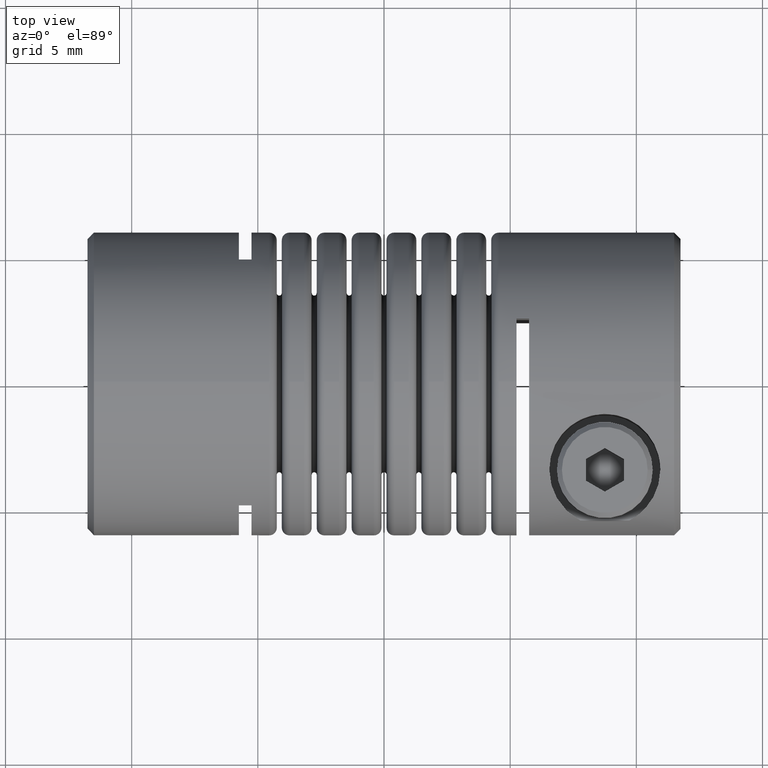
[diagram: clean part render]
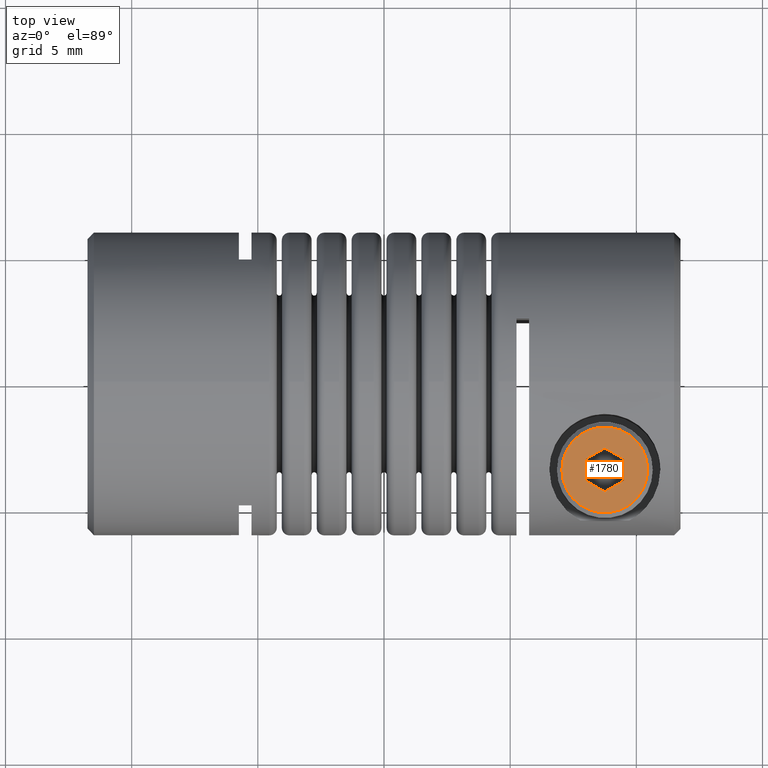
[diagram: same view with one face highlighted and labeled with its STEP entity id]
A machine part, top view. The second image highlights one B-rep face of the part: STEP entity #1780.
In plain terms, the highlighted planar face has unit normal (0, 0, 1).
Its self-contained STEP definition (entity closure, byte-faithful):
#931 = ORIENTED_EDGE ( 'NONE', *, *, #1955, .F. ) ;
#932 = ORIENTED_EDGE ( 'NONE', *, *, #1958, .F. ) ;
#934 = ORIENTED_EDGE ( 'NONE', *, *, #1949, .F. ) ;
#935 = ORIENTED_EDGE ( 'NONE', *, *, #1952, .F. ) ;
#961 = ORIENTED_EDGE ( 'NONE', *, *, #1957, .F. ) ;
#962 = ORIENTED_EDGE ( 'NONE', *, *, #1956, .F. ) ;
#965 = ORIENTED_EDGE ( 'NONE', *, *, #1960, .T. ) ;
#966 = ORIENTED_EDGE ( 'NONE', *, *, #1938, .T. ) ;
#1082 = EDGE_LOOP ( 'NONE', ( #961, #962, #931, #932, #934, #935 ) ) ;
#1087 = EDGE_LOOP ( 'NONE', ( #965, #966 ) ) ;
#1115 = VERTEX_POINT ( 'NONE', #1116 ) ;
#1116 = CARTESIAN_POINT ( 'NONE',  ( 7.049999999999997200, -3.481517620346378500, 4.500000000000001800 ) ) ;
#1117 = VERTEX_POINT ( 'NONE', #1376 ) ;
#1131 = VERTEX_POINT ( 'NONE', #1385 ) ;
#1132 = VERTEX_POINT ( 'NONE', #1386 ) ;
#1133 = VERTEX_POINT ( 'NONE', #1387 ) ;
#1134 = VERTEX_POINT ( 'NONE', #1388 ) ;
#1135 = VERTEX_POINT ( 'NONE', #1389 ) ;
#1136 = VERTEX_POINT ( 'NONE', #1390 ) ;
#1376 = CARTESIAN_POINT ( 'NONE',  ( 10.45000000000000500, -3.481517620346378500, 4.500000000000001800 ) ) ;
#1385 = CARTESIAN_POINT ( 'NONE',  ( 8.000000000000000000, -3.914530322238599900, 4.500000000000001800 ) ) ;
#1386 = CARTESIAN_POINT ( 'NONE',  ( 8.750000000000003600, -4.347543024130818200, 4.500000000000001800 ) ) ;
#1387 = CARTESIAN_POINT ( 'NONE',  ( 8.000000000000000000, -3.048504918454159700, 4.500000000000001800 ) ) ;
#1388 = CARTESIAN_POINT ( 'NONE',  ( 8.750000000000000000, -2.615492216561940500, 4.500000000000001800 ) ) ;
#1389 = CARTESIAN_POINT ( 'NONE',  ( 9.500000000000003600, -3.048504918454161500, 4.500000000000001800 ) ) ;
#1390 = CARTESIAN_POINT ( 'NONE',  ( 9.500000000000003600, -3.914530322238599900, 4.500000000000001800 ) ) ;
#1780 = ADVANCED_FACE ( 'NONE', ( #3428, #3431 ), #3653, .T. ) ;
#1938 = EDGE_CURVE ( 'NONE', #1117, #1115, #4304, .T. ) ;
#1949 = EDGE_CURVE ( 'NONE', #1136, #1135, #4320, .T. ) ;
#1952 = EDGE_CURVE ( 'NONE', #1132, #1136, #4315, .T. ) ;
#1955 = EDGE_CURVE ( 'NONE', #1134, #1133, #4324, .T. ) ;
#1956 = EDGE_CURVE ( 'NONE', #1133, #1131, #4329, .T. ) ;
#1957 = EDGE_CURVE ( 'NONE', #1131, #1132, #4331, .T. ) ;
#1958 = EDGE_CURVE ( 'NONE', #1135, #1134, #4333, .T. ) ;
#1960 = EDGE_CURVE ( 'NONE', #1115, #1117, #4337, .T. ) ;
#2612 = AXIS2_PLACEMENT_3D ( 'NONE', #3652, #3655, #3656 ) ;
#2735 = AXIS2_PLACEMENT_3D ( 'NONE', #4401, #4402, #4403 ) ;
#2743 = AXIS2_PLACEMENT_3D ( 'NONE', #4440, #4455, #4456 ) ;
#3428 = FACE_BOUND ( 'NONE', #1082, .T. ) ;
#3431 = FACE_OUTER_BOUND ( 'NONE', #1087, .T. ) ;
#3652 = CARTESIAN_POINT ( 'NONE',  ( 8.750000000000000000, -3.481517620346378500, 4.500000000000001800 ) ) ;
#3653 = PLANE ( 'NONE',  #2612 ) ;
#3655 = DIRECTION ( 'NONE',  ( 0.0000000000000000000, 0.0000000000000000000, 1.000000000000000000 ) ) ;
#3656 = DIRECTION ( 'NONE',  ( 1.000000000000000000, 0.0000000000000000000, -0.0000000000000000000 ) ) ;
#4304 = CIRCLE ( 'NONE', #2735, 1.700000000000003500 ) ;
#4315 = LINE ( 'NONE', #4435, #4316 ) ;
#4316 = VECTOR ( 'NONE', #4436, 1000.000000000000000 ) ;
#4320 = LINE ( 'NONE', #4428, #4321 ) ;
#4321 = VECTOR ( 'NONE', #4429, 1000.000000000000000 ) ;
#4324 = LINE ( 'NONE', #4443, #4326 ) ;
#4326 = VECTOR ( 'NONE', #4444, 1000.000000000000100 ) ;
#4329 = LINE ( 'NONE', #4445, #4330 ) ;
#4330 = VECTOR ( 'NONE', #4446, 1000.000000000000000 ) ;
#4331 = LINE ( 'NONE', #4447, #4332 ) ;
#4332 = VECTOR ( 'NONE', #4448, 1000.000000000000100 ) ;
#4333 = LINE ( 'NONE', #4449, #4334 ) ;
#4334 = VECTOR ( 'NONE', #4450, 1000.000000000000100 ) ;
#4337 = CIRCLE ( 'NONE', #2743, 1.700000000000003500 ) ;
#4401 = CARTESIAN_POINT ( 'NONE',  ( 8.750000000000000000, -3.481517620346378500, 4.500000000000001800 ) ) ;
#4402 = DIRECTION ( 'NONE',  ( 0.0000000000000000000, 0.0000000000000000000, 1.000000000000000000 ) ) ;
#4403 = DIRECTION ( 'NONE',  ( 1.000000000000000000, 0.0000000000000000000, 0.0000000000000000000 ) ) ;
#4428 = CARTESIAN_POINT ( 'NONE',  ( 9.500000000000003600, -3.914530322238599900, 4.500000000000001800 ) ) ;
#4429 = DIRECTION ( 'NONE',  ( 0.0000000000000000000, 1.000000000000000000, 0.0000000000000000000 ) ) ;
#4435 = CARTESIAN_POINT ( 'NONE',  ( 8.750000000000003600, -4.347543024130819100, 4.500000000000001800 ) ) ;
#4436 = DIRECTION ( 'NONE',  ( 0.8660254037844381500, 0.5000000000000008900, 0.0000000000000000000 ) ) ;
#4440 = CARTESIAN_POINT ( 'NONE',  ( 8.750000000000000000, -3.481517620346378500, 4.500000000000001800 ) ) ;
#4443 = CARTESIAN_POINT ( 'NONE',  ( 8.750000000000000000, -2.615492216561940500, 4.500000000000001800 ) ) ;
#4444 = DIRECTION ( 'NONE',  ( -0.8660254037844388200, -0.4999999999999996100, 0.0000000000000000000 ) ) ;
#4445 = CARTESIAN_POINT ( 'NONE',  ( 8.000000000000000000, -3.048504918454159700, 4.500000000000001800 ) ) ;
#4446 = DIRECTION ( 'NONE',  ( 0.0000000000000000000, -1.000000000000000000, 0.0000000000000000000 ) ) ;
#4447 = CARTESIAN_POINT ( 'NONE',  ( 8.000000000000000000, -3.914530322238599900, 4.500000000000001800 ) ) ;
#4448 = DIRECTION ( 'NONE',  ( 0.8660254037844396000, -0.4999999999999982200, 0.0000000000000000000 ) ) ;
#4449 = CARTESIAN_POINT ( 'NONE',  ( 9.500000000000003600, -3.048504918454161500, 4.500000000000001800 ) ) ;
#4450 = DIRECTION ( 'NONE',  ( -0.8660254037844384900, 0.5000000000000003300, 0.0000000000000000000 ) ) ;
#4455 = DIRECTION ( 'NONE',  ( 0.0000000000000000000, 0.0000000000000000000, 1.000000000000000000 ) ) ;
#4456 = DIRECTION ( 'NONE',  ( 1.000000000000000000, 0.0000000000000000000, 0.0000000000000000000 ) ) ;